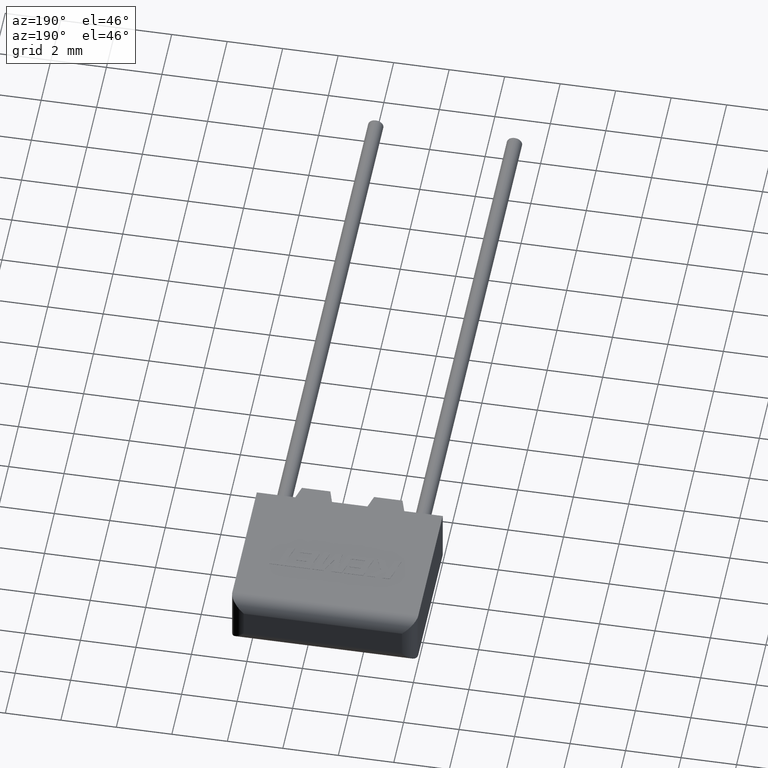
[diagram: clean part render]
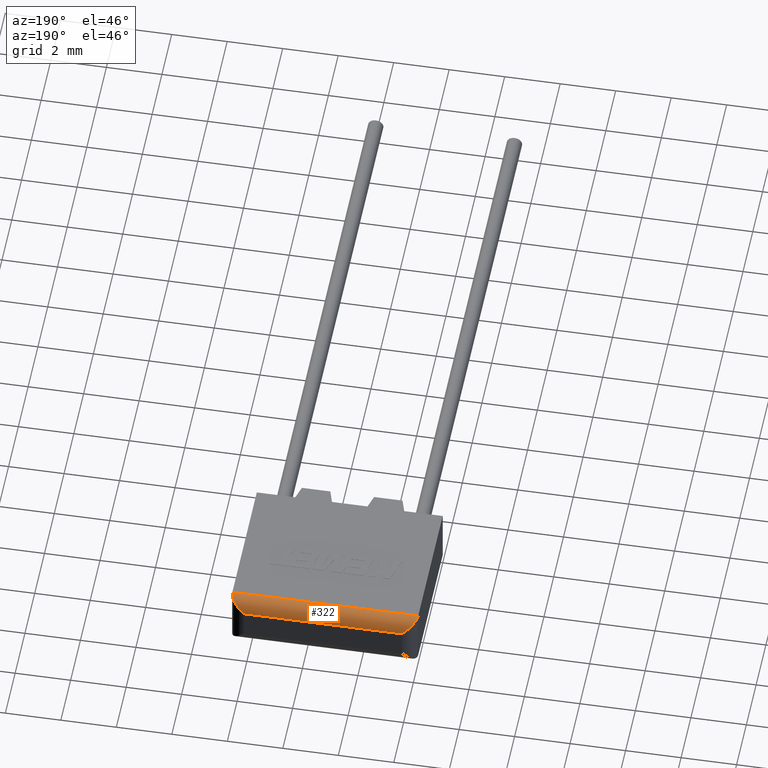
[diagram: same view with one face highlighted and labeled with its STEP entity id]
A machine part, auxiliary view. The second image highlights one B-rep face of the part: STEP entity #322.
In plain terms, the highlighted cylindrical surface (edge-blend (fillet) strip) has radius 0.5 mm, axis along (-1, 0, 0).
Its self-contained STEP definition (entity closure, byte-faithful):
#32 = ORIENTED_EDGE ( 'NONE', *, *, #3134, .F. ) ;
#93 = AXIS2_PLACEMENT_3D ( 'NONE', #2405, #1390, #920 ) ;
#254 = VERTEX_POINT ( 'NONE', #3107 ) ;
#322 = ADVANCED_FACE ( 'NONE', ( #1998 ), #2267, .T. ) ;
#489 = ORIENTED_EDGE ( 'NONE', *, *, #1980, .T. ) ;
#530 = VERTEX_POINT ( 'NONE', #3195 ) ;
#888 = CARTESIAN_POINT ( 'NONE',  ( 0.2071067811865475200, 5.499999999999998200, 1.792893218813452300 ) ) ;
#889 = EDGE_CURVE ( 'NONE', #254, #1971, #2766, .T. ) ;
#920 = DIRECTION ( 'NONE',  ( 0.0000000000000000000, 0.0000000000000000000, 1.000000000000000000 ) ) ;
#1007 = CARTESIAN_POINT ( 'NONE',  ( 0.5000000000000000000, 5.500000000000000000, 1.500000000000000000 ) ) ;
#1029 = DIRECTION ( 'NONE',  ( 1.000000000000000000, -0.0000000000000000000, -0.0000000000000000000 ) ) ;
#1136 = EDGE_CURVE ( 'NONE', #2245, #254, #1251, .T. ) ;
#1143 = CARTESIAN_POINT ( 'NONE',  ( 0.0000000000000000000, 4.999999999999999100, 2.000000000000000000 ) ) ;
#1230 = VECTOR ( 'NONE', #2497, 1000.000000000000000 ) ;
#1251 = LINE ( 'NONE', #1690, #3185 ) ;
#1307 = CARTESIAN_POINT ( 'NONE',  ( 6.492893218813453200, 5.499999999999999100, 1.792893218813452500 ) ) ;
#1383 = CARTESIAN_POINT ( 'NONE',  ( 0.5000000000000000000, 5.500000000000000000, 1.500000000000000000 ) ) ;
#1390 = DIRECTION ( 'NONE',  ( -1.000000000000000000, 0.0000000000000000000, 0.0000000000000000000 ) ) ;
#1474 = EDGE_LOOP ( 'NONE', ( #489, #32, #1876, #1861 ) ) ;
#1543 = CARTESIAN_POINT ( 'NONE',  ( 6.700000000000000200, 5.292893218813451200, 2.000000000000000000 ) ) ;
#1690 = CARTESIAN_POINT ( 'NONE',  ( 0.0000000000000000000, 5.500000000000000000, 1.500000000000000000 ) ) ;
#1750 = CARTESIAN_POINT ( 'NONE',  ( 0.0000000000000000000, 4.999999999999999100, 2.000000000000000000 ) ) ;
#1861 = ORIENTED_EDGE ( 'NONE', *, *, #1136, .F. ) ;
#1876 = ORIENTED_EDGE ( 'NONE', *, *, #889, .F. ) ;
#1902 = LINE ( 'NONE', #1750, #1230 ) ;
#1971 = VERTEX_POINT ( 'NONE', #2631 ) ;
#1980 = EDGE_CURVE ( 'NONE', #2245, #530, #2037, .T. ) ;
#1998 = FACE_OUTER_BOUND ( 'NONE', #1474, .T. ) ;
#2037 =( BOUNDED_CURVE ( )  B_SPLINE_CURVE ( 3, ( #1383, #888, #3137, #1143 ),
 .UNSPECIFIED., .F., .F. ) 
 B_SPLINE_CURVE_WITH_KNOTS ( ( 4, 4 ),
 ( 1.570796326794896800, 3.141592653589793100 ),
 .UNSPECIFIED. ) 
 CURVE ( )  GEOMETRIC_REPRESENTATION_ITEM ( )  RATIONAL_B_SPLINE_CURVE ( ( 1.000000000000000000, 0.8047378541243650500, 0.8047378541243650500, 1.000000000000000000 ) ) 
 REPRESENTATION_ITEM ( '' )  );
#2046 = CARTESIAN_POINT ( 'NONE',  ( 6.700000000000000200, 4.999999999999999100, 2.000000000000000000 ) ) ;
#2245 = VERTEX_POINT ( 'NONE', #1007 ) ;
#2267 = CYLINDRICAL_SURFACE ( 'NONE', #93, 0.5000000000000000000 ) ;
#2405 = CARTESIAN_POINT ( 'NONE',  ( 0.0000000000000000000, 4.999999999999999100, 1.500000000000000000 ) ) ;
#2497 = DIRECTION ( 'NONE',  ( -1.000000000000000000, 0.0000000000000000000, 0.0000000000000000000 ) ) ;
#2631 = CARTESIAN_POINT ( 'NONE',  ( 6.700000000000000200, 4.999999999999999100, 2.000000000000000000 ) ) ;
#2766 =( BOUNDED_CURVE ( )  B_SPLINE_CURVE ( 3, ( #3086, #1307, #1543, #2046 ),
 .UNSPECIFIED., .F., .F. ) 
 B_SPLINE_CURVE_WITH_KNOTS ( ( 4, 4 ),
 ( 1.570796326794896600, 3.141592653589793100 ),
 .UNSPECIFIED. ) 
 CURVE ( )  GEOMETRIC_REPRESENTATION_ITEM ( )  RATIONAL_B_SPLINE_CURVE ( ( 1.000000000000000000, 0.8047378541243649400, 0.8047378541243649400, 1.000000000000000000 ) ) 
 REPRESENTATION_ITEM ( '' )  );
#3086 = CARTESIAN_POINT ( 'NONE',  ( 6.200000000000001100, 5.500000000000000000, 1.500000000000000000 ) ) ;
#3107 = CARTESIAN_POINT ( 'NONE',  ( 6.200000000000001100, 5.500000000000000000, 1.500000000000000000 ) ) ;
#3134 = EDGE_CURVE ( 'NONE', #1971, #530, #1902, .T. ) ;
#3137 = CARTESIAN_POINT ( 'NONE',  ( 1.442892915397364600E-016, 5.292893218813451200, 1.999999999999999600 ) ) ;
#3185 = VECTOR ( 'NONE', #1029, 1000.000000000000000 ) ;
#3195 = CARTESIAN_POINT ( 'NONE',  ( 0.0000000000000000000, 4.999999999999999100, 2.000000000000000000 ) ) ;